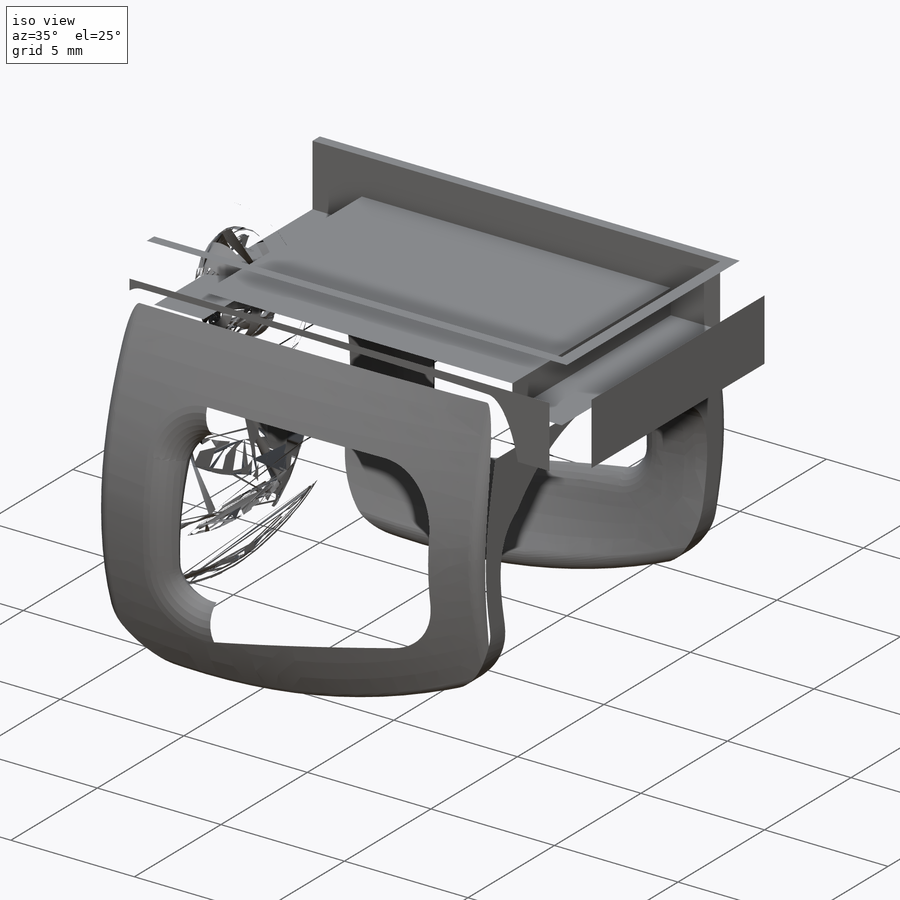
[diagram: iso view]
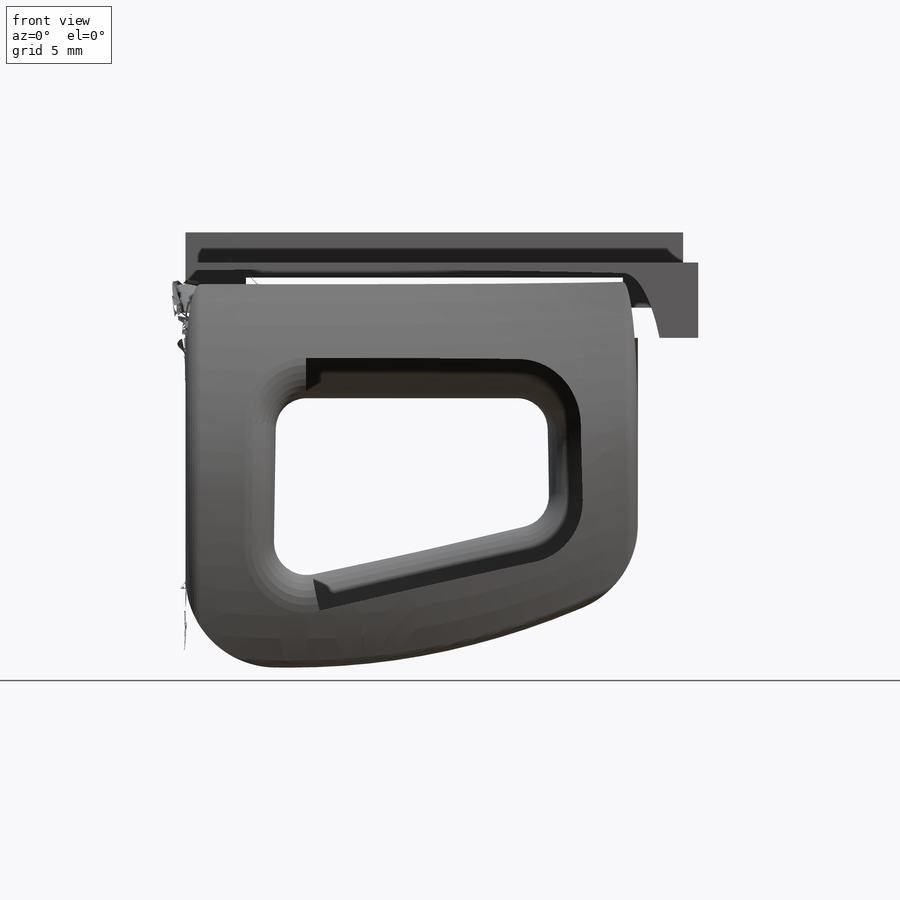
[diagram: front view]
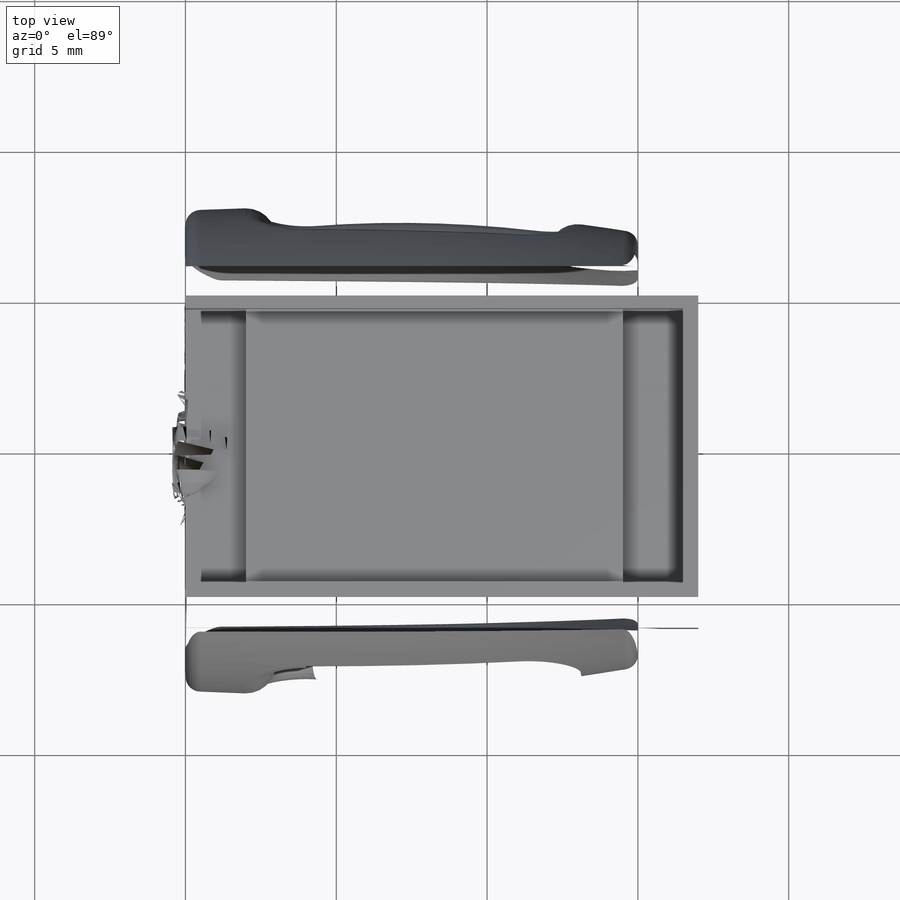
[diagram: top view]
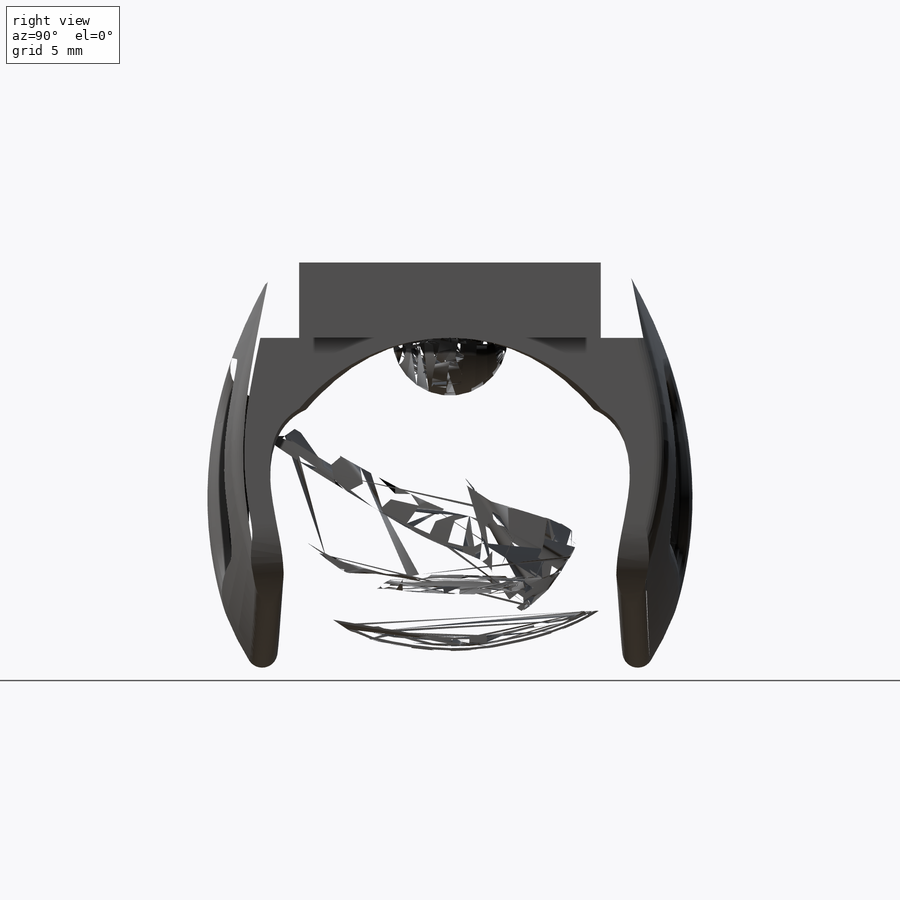
[diagram: right view]
SOLIDWORKS PART (.sldprt)
format: sldprt  version: not decoded by parser v0  size: 1,315,328 bytes
history: native  units: mm
features: fillet x9, sketch x7, plane x2, extrude x2, cut_extrude x2, material x1 (+13 scaffold rows collapsed)
feature tree (36):
  scaffold x13  (default folders/planes/origin — collapsed)
  material  "ABS"
  sketch  "Sketch2"  dims[c1.D3=9.5mm c1.D7=~5.264952mm c1.D1=6.0mm c1.D2=2.0mm c1.D4=8.0mm c1.D5=3.0mm c1.D6=5.8mm c2.D7=~7.141428mm c2.D5=6.0mm c3.D7=6.75mm c3.D8=1.0mm c3.D4=10.0mm]
  plane  "Plane1"  Offset=8mm
  sketch  "Sketch3"  dims[D1=6.0mm D2=12.0mm D3=6.0mm D4=1.0mm D5=9.75mm D6=5.75mm D7=4.75mm D8=~2.33428mm]
  plane  "Plane2"  Offset=15mm
  sketch  "Sketch4"  dims[c1.D1=6.5mm c1.D2=7.5mm c1.D3=1.0mm c1.D4=5.75mm c1.D5=5.5mm c1.D6=2.0mm c1.D7=12.0mm c1.D8=6.0mm c2.D4=5.0mm c2.D8=~6.069192mm]
  sketch  "Sketch5"  dims[D1=2.0mm]
  extrude  "IMUextend"  Depth=18mm
  sketch  "Sketch7"  dims[c1.D6=3.0mm c1.D7=2.0mm c2.D6=3.0mm c2.D1=3.0mm c2.D2=3.0mm c2.D3=2.0mm c2.D4=6.0mm c2.D5=4.0mm]
  cut_extrude  "SideCuts"  Depth=18mm
  fillet  "Fillet1"  Radius=1mm
  sketch  "Sketch8"  dims[D1=9.15mm D2=16.5mm]
  extrude  "Boss-Extrude2"  Depth=1.5mm
  sketch  "Sketch9"  dims[D1=2.0mm]
  cut_extrude  "WireCut"  Depth=1mm
  fillet  "Fillet5"  Radius=1mm
  fillet  "Fillet6"  Radius=0.5mm
  fillet  "Fillet8"  Radius=1mm
  fillet  "Fillet10"  Radius=0.5mm
  fillet  "Fillet13"  Radius=0.5mm
  fillet  "Fillet15"  Radius=0.5mm
  fillet  "Fillet16"  Radius=0.5mm
  fillet  "Fillet17"  Radius=1mm
decode coverage: 20 of 20 modeling features carry decoded parameters
note: ~ marks probable driven/reference dimensions
note: suppression state not decoded; provenance and decode notes live in map.json
